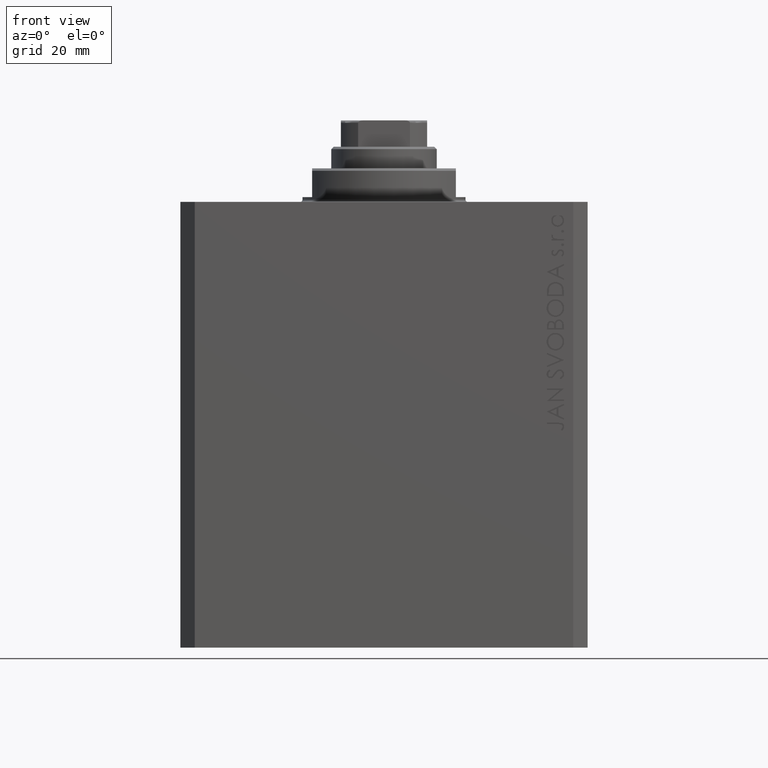
[diagram: clean part render]
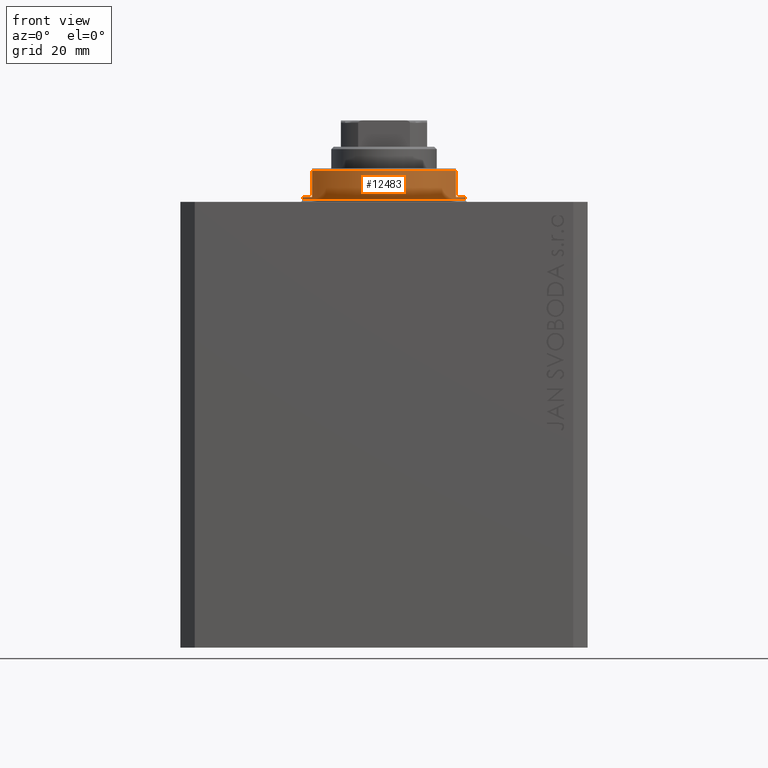
[diagram: same view with one face highlighted and labeled with its STEP entity id]
A machine part, front view. The second image highlights one B-rep face of the part: STEP entity #12483.
In plain terms, the highlighted cylindrical surface (partial cylindrical patch) has radius 17 mm, axis along (0, 0, -1).
Its self-contained STEP definition (entity closure, byte-faithful):
#1008 = EDGE_CURVE ( 'NONE', #13548, #41372, #21426, .T. ) ;
#1093 = CIRCLE ( 'NONE', #21910, 17.00000000000000000 ) ;
#2670 = LINE ( 'NONE', #19996, #25715 ) ;
#3419 = EDGE_CURVE ( 'NONE', #9862, #22216, #14834, .T. ) ;
#6686 = ORIENTED_EDGE ( 'NONE', *, *, #3419, .F. ) ;
#8169 = EDGE_CURVE ( 'NONE', #9862, #15180, #2670, .T. ) ;
#8573 = AXIS2_PLACEMENT_3D ( 'NONE', #8997, #22721, #43620 ) ;
#8997 = CARTESIAN_POINT ( 'NONE',  ( 0.000000000000000000, 0.000000000000000000, -0.4999999999999995559 ) ) ;
#9121 = CARTESIAN_POINT ( 'NONE',  ( 0.000000000000000000, 0.000000000000000000, -6.500000000000013323 ) ) ;
#9743 = CARTESIAN_POINT ( 'NONE',  ( -14.99999999999999645, -8.000000000000003553, -1.000000000000000000 ) ) ;
#9862 = VERTEX_POINT ( 'NONE', #29281 ) ;
#10513 = ORIENTED_EDGE ( 'NONE', *, *, #13000, .T. ) ;
#11627 = EDGE_CURVE ( 'NONE', #15180, #41372, #16475, .T. ) ;
#11742 = DIRECTION ( 'NONE',  ( -0.000000000000000000, -0.000000000000000000, 1.000000000000000000 ) ) ;
#12483 = ADVANCED_FACE ( 'NONE', ( #13503 ), #13734, .T. ) ;
#12508 = DIRECTION ( 'NONE',  ( 0.000000000000000000, 0.000000000000000000, 1.000000000000000000 ) ) ;
#13000 = EDGE_CURVE ( 'NONE', #35009, #26329, #23744, .T. ) ;
#13503 = FACE_OUTER_BOUND ( 'NONE', #32374, .T. ) ;
#13548 = VERTEX_POINT ( 'NONE', #30758 ) ;
#13734 = CYLINDRICAL_SURFACE ( 'NONE', #14374, 17.00000000000000000 ) ;
#14374 = AXIS2_PLACEMENT_3D ( 'NONE', #30584, #17087, #38197 ) ;
#14834 = CIRCLE ( 'NONE', #42095, 17.00000000000000000 ) ;
#15180 = VERTEX_POINT ( 'NONE', #24615 ) ;
#16475 = CIRCLE ( 'NONE', #8573, 17.00000000000000000 ) ;
#16506 = VECTOR ( 'NONE', #40576, 1000.000000000000000 ) ;
#17087 = DIRECTION ( 'NONE',  ( -0.000000000000000000, -0.000000000000000000, 1.000000000000000000 ) ) ;
#17257 = EDGE_CURVE ( 'NONE', #26329, #22756, #33842, .T. ) ;
#18524 = DIRECTION ( 'NONE',  ( 0.000000000000000000, 0.000000000000000000, -1.000000000000000000 ) ) ;
#19996 = CARTESIAN_POINT ( 'NONE',  ( 17.00000000000000000, 0.000000000000000000, -7.000000000000000000 ) ) ;
#20807 = CARTESIAN_POINT ( 'NONE',  ( -15.00000000000000000, -8.000000000000001776, -7.000000000000000000 ) ) ;
#21426 = LINE ( 'NONE', #28604, #35490 ) ;
#21910 = AXIS2_PLACEMENT_3D ( 'NONE', #34061, #18524, #28418 ) ;
#22216 = VERTEX_POINT ( 'NONE', #26284 ) ;
#22420 = DIRECTION ( 'NONE',  ( -1.000000000000000000, 0.000000000000000000, 0.000000000000000000 ) ) ;
#22721 = DIRECTION ( 'NONE',  ( -0.000000000000000000, -0.000000000000000000, -1.000000000000000000 ) ) ;
#22756 = VERTEX_POINT ( 'NONE', #30002 ) ;
#23744 = LINE ( 'NONE', #20807, #16506 ) ;
#24615 = CARTESIAN_POINT ( 'NONE',  ( 17.00000000000000000, 0.000000000000000000, -0.4999999999999995559 ) ) ;
#25715 = VECTOR ( 'NONE', #39777, 1000.000000000000000 ) ;
#25817 = CARTESIAN_POINT ( 'NONE',  ( -17.00000000000000000, 2.081899558550500280E-15, -0.4999999999999995559 ) ) ;
#26284 = CARTESIAN_POINT ( 'NONE',  ( 14.99999999999999645, -8.000000000000003553, -1.000000000000000000 ) ) ;
#26329 = VERTEX_POINT ( 'NONE', #27789 ) ;
#26448 = ORIENTED_EDGE ( 'NONE', *, *, #11627, .T. ) ;
#27284 = LINE ( 'NONE', #40988, #30579 ) ;
#27789 = CARTESIAN_POINT ( 'NONE',  ( -15.00000000000000000, -8.000000000000001776, -6.500000000000014211 ) ) ;
#27986 = AXIS2_PLACEMENT_3D ( 'NONE', #9121, #12508, #22420 ) ;
#28164 = EDGE_CURVE ( 'NONE', #35009, #13548, #1093, .T. ) ;
#28418 = DIRECTION ( 'NONE',  ( -1.000000000000000000, 0.000000000000000000, 0.000000000000000000 ) ) ;
#28604 = CARTESIAN_POINT ( 'NONE',  ( -17.00000000000000000, 2.081899558550500280E-15, -7.000000000000000000 ) ) ;
#28811 = ORIENTED_EDGE ( 'NONE', *, *, #17257, .T. ) ;
#29144 = EDGE_CURVE ( 'NONE', #22216, #22756, #27284, .T. ) ;
#29281 = CARTESIAN_POINT ( 'NONE',  ( 17.00000000000000000, 0.000000000000000000, -1.000000000000000000 ) ) ;
#30002 = CARTESIAN_POINT ( 'NONE',  ( 15.00000000000000000, -8.000000000000001776, -6.500000000000013323 ) ) ;
#30579 = VECTOR ( 'NONE', #37610, 1000.000000000000000 ) ;
#30584 = CARTESIAN_POINT ( 'NONE',  ( 0.000000000000000000, 0.000000000000000000, -7.000000000000000000 ) ) ;
#30758 = CARTESIAN_POINT ( 'NONE',  ( -17.00000000000000000, 2.081899558550500280E-15, -1.000000000000000000 ) ) ;
#31095 = CARTESIAN_POINT ( 'NONE',  ( 0.000000000000000000, 0.000000000000000000, -1.000000000000000000 ) ) ;
#31227 = ORIENTED_EDGE ( 'NONE', *, *, #8169, .T. ) ;
#31492 = ORIENTED_EDGE ( 'NONE', *, *, #28164, .F. ) ;
#31553 = ORIENTED_EDGE ( 'NONE', *, *, #29144, .F. ) ;
#32374 = EDGE_LOOP ( 'NONE', ( #33781, #31492, #10513, #28811, #31553, #6686, #31227, #26448 ) ) ;
#33781 = ORIENTED_EDGE ( 'NONE', *, *, #1008, .F. ) ;
#33842 = CIRCLE ( 'NONE', #27986, 17.00000000000000000 ) ;
#34061 = CARTESIAN_POINT ( 'NONE',  ( 0.000000000000000000, 0.000000000000000000, -1.000000000000000000 ) ) ;
#35009 = VERTEX_POINT ( 'NONE', #9743 ) ;
#35490 = VECTOR ( 'NONE', #11742, 1000.000000000000000 ) ;
#37610 = DIRECTION ( 'NONE',  ( 0.000000000000000000, 0.000000000000000000, -1.000000000000000000 ) ) ;
#38197 = DIRECTION ( 'NONE',  ( 1.000000000000000000, 0.000000000000000000, 0.000000000000000000 ) ) ;
#39777 = DIRECTION ( 'NONE',  ( -0.000000000000000000, -0.000000000000000000, 1.000000000000000000 ) ) ;
#40576 = DIRECTION ( 'NONE',  ( 0.000000000000000000, 0.000000000000000000, -1.000000000000000000 ) ) ;
#40760 = DIRECTION ( 'NONE',  ( -1.000000000000000000, 0.000000000000000000, 0.000000000000000000 ) ) ;
#40988 = CARTESIAN_POINT ( 'NONE',  ( 15.00000000000000000, -8.000000000000001776, -7.000000000000000000 ) ) ;
#41372 = VERTEX_POINT ( 'NONE', #25817 ) ;
#42095 = AXIS2_PLACEMENT_3D ( 'NONE', #31095, #44137, #40760 ) ;
#43620 = DIRECTION ( 'NONE',  ( 1.000000000000000000, 0.000000000000000000, 0.000000000000000000 ) ) ;
#44137 = DIRECTION ( 'NONE',  ( 0.000000000000000000, 0.000000000000000000, -1.000000000000000000 ) ) ;